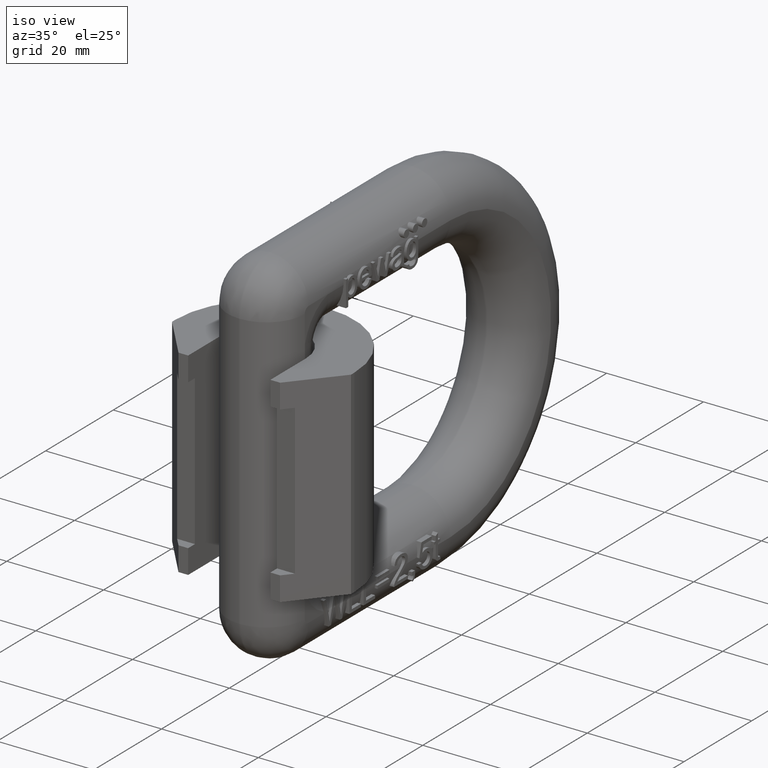
[diagram: clean part render]
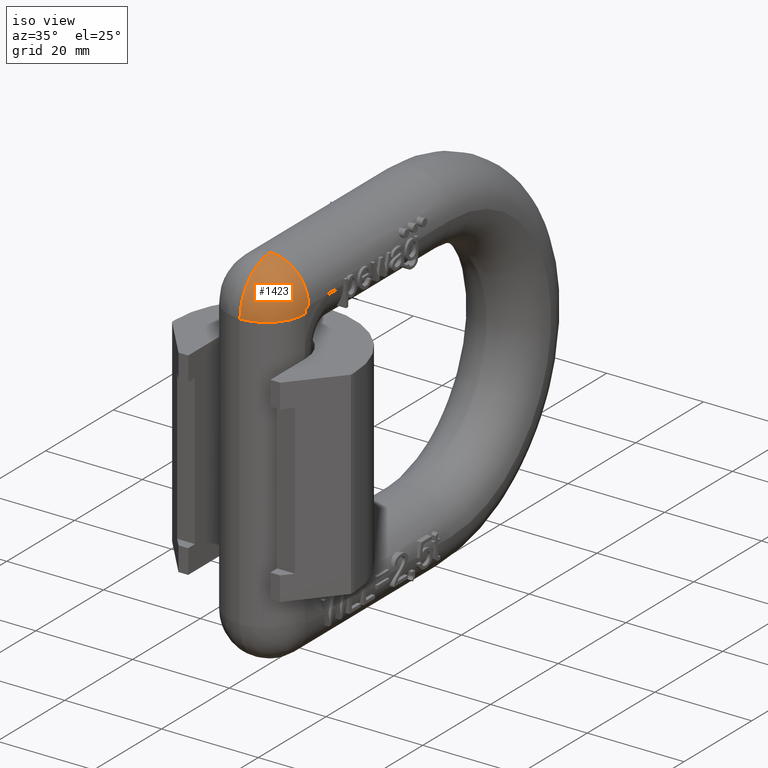
[diagram: same view with one face highlighted and labeled with its STEP entity id]
A machine part, iso view. The second image highlights one B-rep face of the part: STEP entity #1423.
In plain terms, the highlighted face is a freeform B-spline surface patch.
Its self-contained STEP definition (entity closure, byte-faithful):
#253=(
BOUNDED_SURFACE()
B_SPLINE_SURFACE(3,3,((#16077,#16078,#16079,#16080),(#16081,#16082,#16083,
#16084),(#16085,#16086,#16087,#16088),(#16089,#16090,#16091,#16092)),
 .UNSPECIFIED.,.F.,.F.,.F.)
B_SPLINE_SURFACE_WITH_KNOTS((4,4),(4,4),(0.,1.),(0.,1.),.UNSPECIFIED.)
GEOMETRIC_REPRESENTATION_ITEM()
RATIONAL_B_SPLINE_SURFACE(((1.,0.804737854124365,0.804737854124365,1.),
(0.804737854124365,0.647603013860688,0.647603013860688,0.804737854124365),
(0.804737854124365,0.647603013860688,0.647603013860688,0.804737854124365),
(1.,0.804737854124365,0.804737854124365,1.)))
REPRESENTATION_ITEM('')
SURFACE()
);
#1423=ADVANCED_FACE('',(#2120),#253,.T.);
#2120=FACE_OUTER_BOUND('',#2603,.T.);
#2603=EDGE_LOOP('',(#4487,#4488,#4489,#4490));
#2830=CIRCLE('',#9069,9.00000000000001);
#2898=CIRCLE('',#9319,7.9);
#2904=CIRCLE('',#9344,1.1);
#2906=CIRCLE('',#9348,7.9);
#4487=ORIENTED_EDGE('',*,*,#7221,.T.);
#4488=ORIENTED_EDGE('',*,*,#6532,.F.);
#4489=ORIENTED_EDGE('',*,*,#7290,.F.);
#4490=ORIENTED_EDGE('',*,*,#7287,.F.);
#5636=VERTEX_POINT('',#11377);
#5638=VERTEX_POINT('',#11383);
#6108=VERTEX_POINT('',#15473);
#6160=VERTEX_POINT('',#16067);
#6532=EDGE_CURVE('',#5636,#5638,#2830,.T.);
#7221=EDGE_CURVE('',#6108,#5638,#2898,.T.);
#7287=EDGE_CURVE('',#6108,#6160,#2904,.T.);
#7290=EDGE_CURVE('',#6160,#5636,#2906,.T.);
#9069=AXIS2_PLACEMENT_3D('',#11382,#9655,#9656);
#9319=AXIS2_PLACEMENT_3D('',#15472,#10502,#10503);
#9344=AXIS2_PLACEMENT_3D('',#16070,#10563,#10564);
#9348=AXIS2_PLACEMENT_3D('',#16076,#10572,#10573);
#9655=DIRECTION('',(-1.,0.,-2.34291072916505E-15));
#9656=DIRECTION('',(2.34308136164923E-15,0.,-1.));
#10502=DIRECTION('',(2.05787455392433E-30,-1.,-8.78341000494586E-16));
#10503=DIRECTION('',(-2.34338634116329E-15,-8.78341000494586E-16,1.));
#10563=DIRECTION('',(1.,0.,2.34291072916505E-15));
#10564=DIRECTION('',(1.57702134179709E-15,0.,-1.));
#10572=DIRECTION('',(2.34291072916505E-15,0.,-1.));
#10573=DIRECTION('',(-1.,0.,-2.19585250123646E-15));
#11377=CARTESIAN_POINT('',(0.0999999999999326,3.,28.5));
#11382=CARTESIAN_POINT('',(0.0999999999999326,12.,28.5));
#11383=CARTESIAN_POINT('',(0.0999999999999115,12.,37.5));
#15472=CARTESIAN_POINT('',(0.09999999999993,12.,29.6));
#15473=CARTESIAN_POINT('',(7.99999999999993,12.,29.6));
#16067=CARTESIAN_POINT('',(7.99999999999993,10.9,28.5));
#16070=CARTESIAN_POINT('',(7.99999999999993,12.,28.5));
#16076=CARTESIAN_POINT('',(0.0999999999999326,10.9,28.5));
#16077=CARTESIAN_POINT('',(7.99999999999993,12.,29.6));
#16078=CARTESIAN_POINT('',(7.99999999999993,11.3556349186104,29.6));
#16079=CARTESIAN_POINT('',(7.99999999999993,10.9,29.1443650813896));
#16080=CARTESIAN_POINT('',(7.99999999999993,10.9,28.5));
#16081=CARTESIAN_POINT('',(7.99999999999992,12.,34.2277128572526));
#16082=CARTESIAN_POINT('',(7.99999999999992,8.6447834896002,34.2277128572526));
#16083=CARTESIAN_POINT('',(7.99999999999993,6.27228714274745,31.8552165103998));
#16084=CARTESIAN_POINT('',(7.99999999999993,6.27228714274745,28.5));
#16085=CARTESIAN_POINT('',(4.72771285725246,12.,37.5));
#16086=CARTESIAN_POINT('',(4.72771285725246,6.72792206135785,37.5));
#16087=CARTESIAN_POINT('',(4.72771285725247,2.99999999999999,33.7720779386422));
#16088=CARTESIAN_POINT('',(4.72771285725248,2.99999999999999,28.5));
#16089=CARTESIAN_POINT('',(0.099999999999909,12.,37.5));
#16090=CARTESIAN_POINT('',(0.099999999999909,6.72792206135785,37.5));
#16091=CARTESIAN_POINT('',(0.0999999999999177,2.99999999999999,33.7720779386421));
#16092=CARTESIAN_POINT('',(0.0999999999999301,2.99999999999999,28.5));